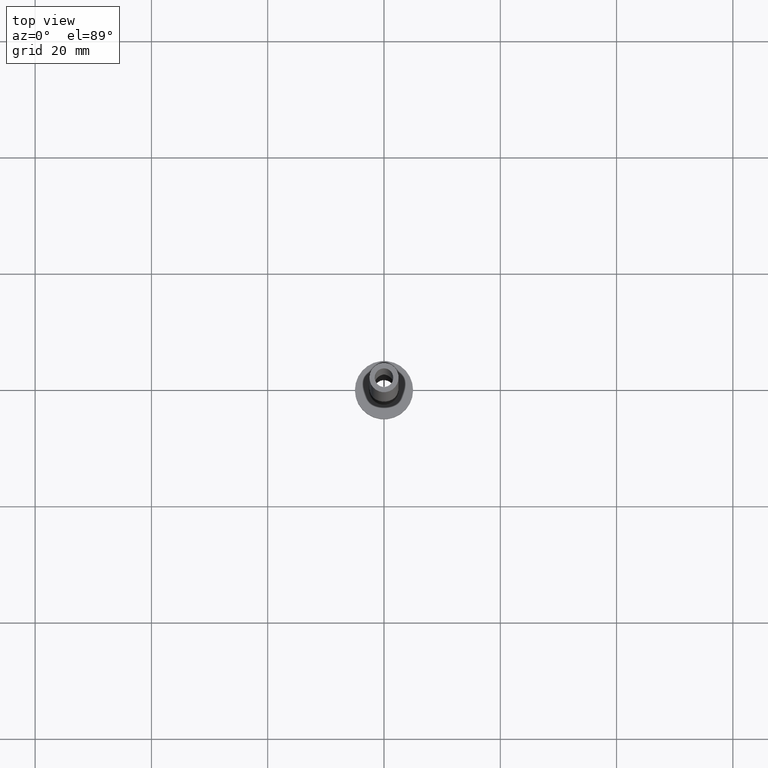
[diagram: clean part render]
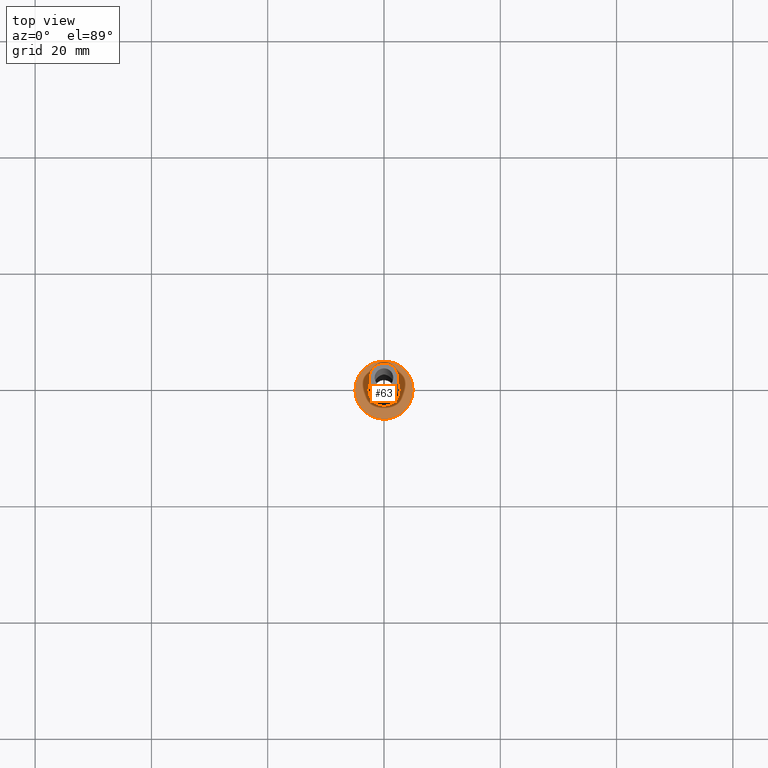
[diagram: same view with one face highlighted and labeled with its STEP entity id]
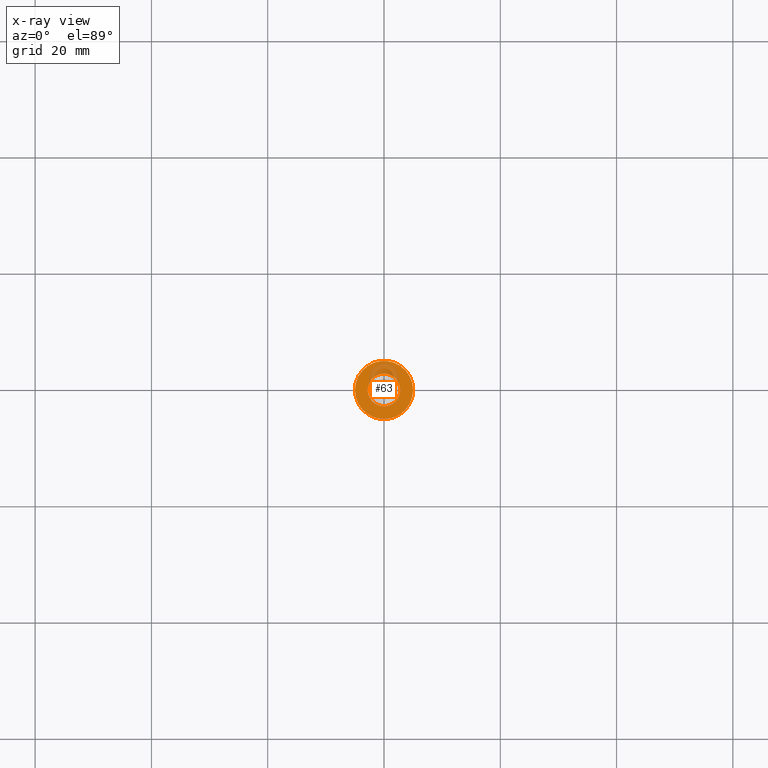
[diagram: x-ray of the same camera — body ghosted, the highlighted face saturated]
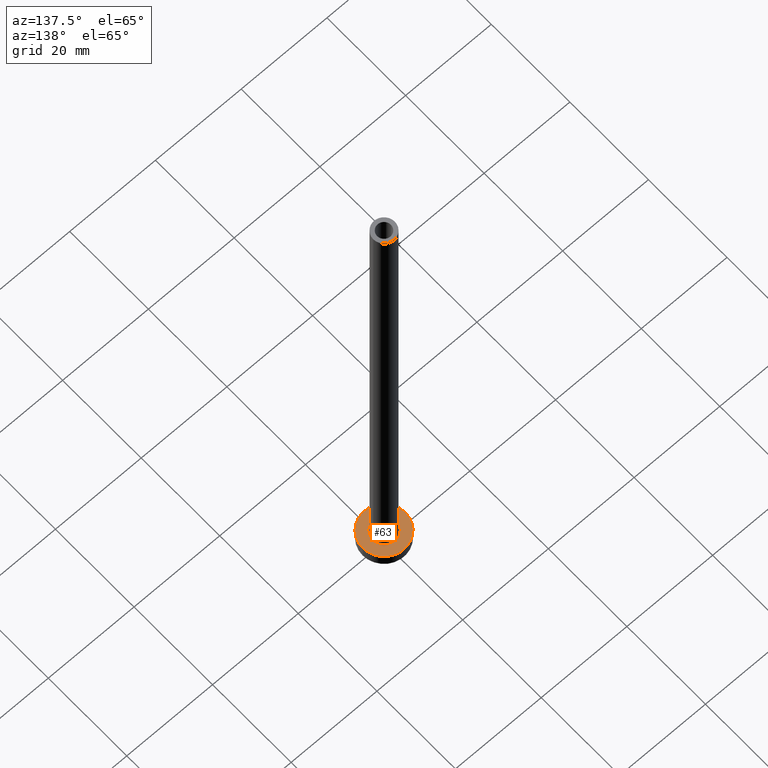
[diagram: same view with one face highlighted and labeled with its STEP entity id]
A machine part, top view. The second image highlights one B-rep face of the part: STEP entity #63.
The next image is the same camera in x-ray: the body ghosted, the highlighted face saturated — about 16% of this face is hidden behind the body in this view.
A second angle (auxiliary view) of the same face is appended — the face is thin or edge-on in the first view.
In plain terms, the highlighted planar face has unit normal (0, 0, 1).
Its self-contained STEP definition (entity closure, byte-faithful):
#23 = DIRECTION ( 'NONE',  ( 0.000000000000000000, 0.000000000000000000, 1.000000000000000000 ) ) ;
#37 = AXIS2_PLACEMENT_3D ( 'NONE', #263, #186, #340 ) ;
#39 = DIRECTION ( 'NONE',  ( 1.000000000000000000, 0.000000000000000000, 0.000000000000000000 ) ) ;
#58 = AXIS2_PLACEMENT_3D ( 'NONE', #162, #23, #288 ) ;
#60 = DIRECTION ( 'NONE',  ( 1.000000000000000000, 0.000000000000000000, 0.000000000000000000 ) ) ;
#63 = ADVANCED_FACE ( 'NONE', ( #449, #196 ), #208, .T. ) ;
#85 = CIRCLE ( 'NONE', #214, 2.799999999999999822 ) ;
#91 = CARTESIAN_POINT ( 'NONE',  ( -5.000000000000000000, 0.000000000000000000, 3.000000000000000000 ) ) ;
#92 = ORIENTED_EDGE ( 'NONE', *, *, #443, .T. ) ;
#104 = CARTESIAN_POINT ( 'NONE',  ( 2.799999999999999822, 0.000000000000000000, 2.999999999999998668 ) ) ;
#133 = VERTEX_POINT ( 'NONE', #91 ) ;
#149 = EDGE_LOOP ( 'NONE', ( #269, #92 ) ) ;
#153 = CIRCLE ( 'NONE', #37, 2.799999999999999822 ) ;
#162 = CARTESIAN_POINT ( 'NONE',  ( 0.000000000000000000, 0.000000000000000000, 3.000000000000000000 ) ) ;
#180 = CARTESIAN_POINT ( 'NONE',  ( 0.000000000000000000, 0.000000000000000000, 3.000000000000000000 ) ) ;
#186 = DIRECTION ( 'NONE',  ( -0.000000000000000000, -0.000000000000000000, -1.000000000000000000 ) ) ;
#187 = VERTEX_POINT ( 'NONE', #363 ) ;
#195 = DIRECTION ( 'NONE',  ( 1.000000000000000000, 0.000000000000000000, 0.000000000000000000 ) ) ;
#196 = FACE_OUTER_BOUND ( 'NONE', #439, .T. ) ;
#198 = DIRECTION ( 'NONE',  ( -0.000000000000000000, -0.000000000000000000, -1.000000000000000000 ) ) ;
#208 = PLANE ( 'NONE',  #58 ) ;
#214 = AXIS2_PLACEMENT_3D ( 'NONE', #280, #198, #195 ) ;
#222 = DIRECTION ( 'NONE',  ( 0.000000000000000000, 0.000000000000000000, 1.000000000000000000 ) ) ;
#226 = VERTEX_POINT ( 'NONE', #298 ) ;
#229 = VERTEX_POINT ( 'NONE', #104 ) ;
#258 = EDGE_CURVE ( 'NONE', #187, #133, #262, .T. ) ;
#262 = CIRCLE ( 'NONE', #418, 5.000000000000000000 ) ;
#263 = CARTESIAN_POINT ( 'NONE',  ( 0.000000000000000000, 0.000000000000000000, 3.000000000000000000 ) ) ;
#269 = ORIENTED_EDGE ( 'NONE', *, *, #361, .T. ) ;
#280 = CARTESIAN_POINT ( 'NONE',  ( 0.000000000000000000, 0.000000000000000000, 3.000000000000000000 ) ) ;
#288 = DIRECTION ( 'NONE',  ( 1.000000000000000000, 0.000000000000000000, -0.000000000000000000 ) ) ;
#298 = CARTESIAN_POINT ( 'NONE',  ( -2.799999999999999822, 3.429011037612589276E-16, 2.999999999999998668 ) ) ;
#317 = ORIENTED_EDGE ( 'NONE', *, *, #428, .T. ) ;
#340 = DIRECTION ( 'NONE',  ( 1.000000000000000000, 0.000000000000000000, 0.000000000000000000 ) ) ;
#361 = EDGE_CURVE ( 'NONE', #229, #226, #153, .T. ) ;
#363 = CARTESIAN_POINT ( 'NONE',  ( 5.000000000000000000, 6.123233995736766282E-16, 3.000000000000000000 ) ) ;
#365 = CIRCLE ( 'NONE', #383, 5.000000000000000000 ) ;
#383 = AXIS2_PLACEMENT_3D ( 'NONE', #407, #222, #39 ) ;
#407 = CARTESIAN_POINT ( 'NONE',  ( 0.000000000000000000, 0.000000000000000000, 3.000000000000000000 ) ) ;
#418 = AXIS2_PLACEMENT_3D ( 'NONE', #180, #459, #60 ) ;
#422 = ORIENTED_EDGE ( 'NONE', *, *, #258, .T. ) ;
#428 = EDGE_CURVE ( 'NONE', #133, #187, #365, .T. ) ;
#439 = EDGE_LOOP ( 'NONE', ( #317, #422 ) ) ;
#443 = EDGE_CURVE ( 'NONE', #226, #229, #85, .T. ) ;
#449 = FACE_BOUND ( 'NONE', #149, .T. ) ;
#459 = DIRECTION ( 'NONE',  ( 0.000000000000000000, 0.000000000000000000, 1.000000000000000000 ) ) ;